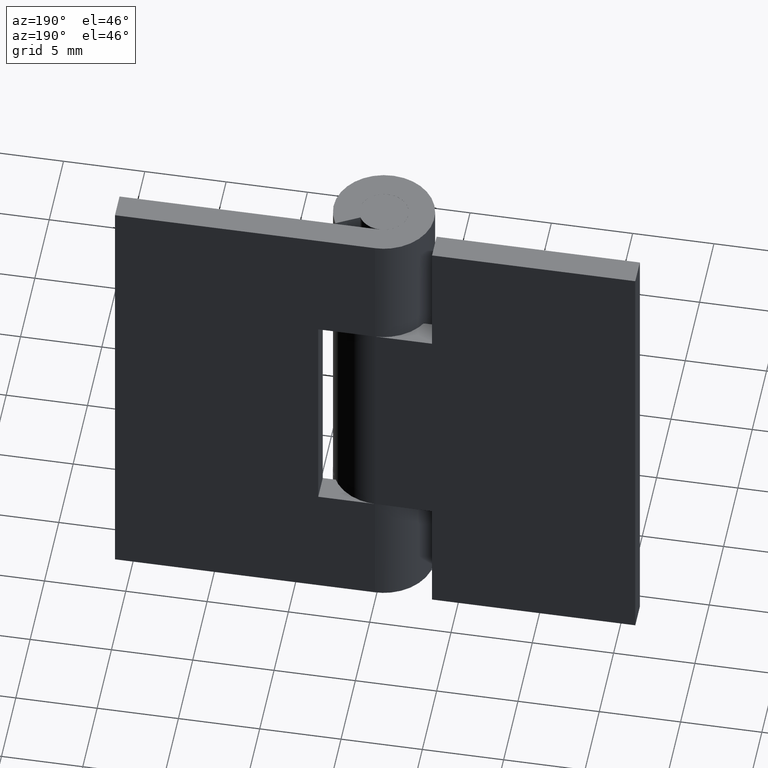
[diagram: clean part render]
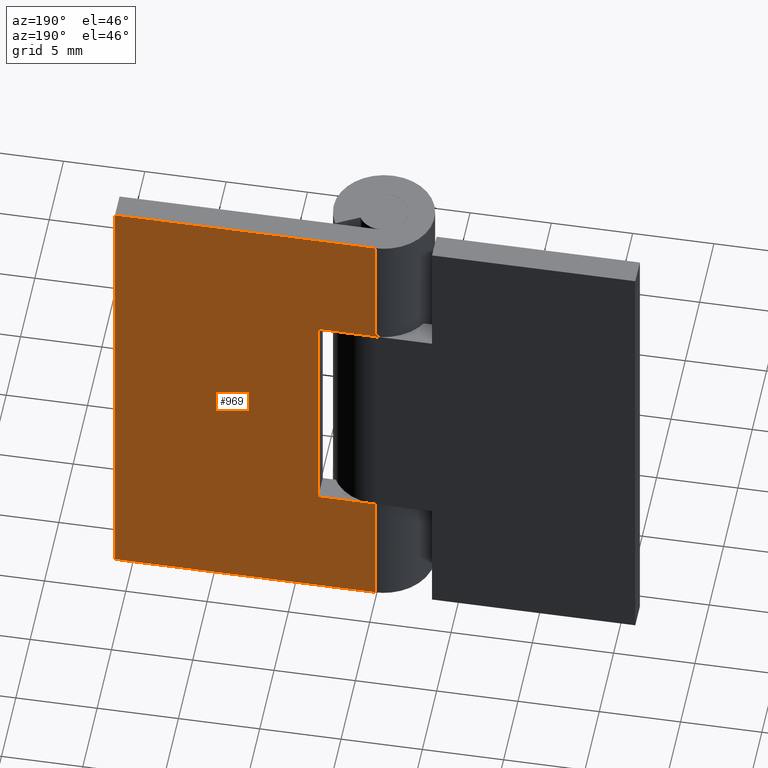
[diagram: same view with one face highlighted and labeled with its STEP entity id]
A machine part, auxiliary view. The second image highlights one B-rep face of the part: STEP entity #969.
In plain terms, the highlighted face is a freeform B-spline surface patch.
Its self-contained STEP definition (entity closure, byte-faithful):
#535=CARTESIAN_POINT('',(0.003521362805220,3.099998000000000,22.300002999999801));
#536=VERTEX_POINT('',#535);
#542=CARTESIAN_POINT('',(3.499999999999901,3.099998000000050,22.300002999999801));
#543=VERTEX_POINT('',#542);
#544=CARTESIAN_POINT('',(0.003521362805220,3.099998000000000,22.300002999999801));
#545=CARTESIAN_POINT('',(3.499999999999901,3.099998000000050,22.300002999999801));
#546=QUASI_UNIFORM_CURVE('',1,(#544,#545),.UNSPECIFIED.,.F.,.U.);
#547=EDGE_CURVE('',#536,#543,#546,.T.);
#655=CARTESIAN_POINT('',(3.499999999999901,3.099998000000050,7.699996999999900));
#656=VERTEX_POINT('',#655);
#662=CARTESIAN_POINT('',(0.003521362805220,3.099998000000000,7.699996999999900));
#663=VERTEX_POINT('',#662);
#664=CARTESIAN_POINT('',(3.499999999999901,3.099998000000050,7.699996999999900));
#665=CARTESIAN_POINT('',(0.003521362805220,3.099998000000000,7.699996999999900));
#666=QUASI_UNIFORM_CURVE('',1,(#664,#665),.UNSPECIFIED.,.F.,.U.);
#667=EDGE_CURVE('',#656,#663,#666,.T.);
#688=CARTESIAN_POINT('',(3.499999999999901,3.099998000000050,22.300002999999801));
#689=CARTESIAN_POINT('',(3.499999999999901,3.099998000000050,7.699996999999900));
#690=QUASI_UNIFORM_CURVE('',1,(#688,#689),.UNSPECIFIED.,.F.,.U.);
#691=EDGE_CURVE('',#543,#656,#690,.T.);
#704=CARTESIAN_POINT('',(0.003521362805220,3.099998000000000,0.0));
#705=VERTEX_POINT('',#704);
#725=CARTESIAN_POINT('',(16.0,3.099998000000000,0.0));
#726=VERTEX_POINT('',#725);
#727=CARTESIAN_POINT('',(0.003521362805220,3.099998000000000,0.0));
#728=CARTESIAN_POINT('',(16.0,3.099998000000000,0.0));
#729=QUASI_UNIFORM_CURVE('',1,(#727,#728),.UNSPECIFIED.,.F.,.U.);
#730=EDGE_CURVE('',#705,#726,#729,.T.);
#782=CARTESIAN_POINT('',(0.003521362805220,3.099998000000000,30.0));
#783=VERTEX_POINT('',#782);
#838=CARTESIAN_POINT('',(16.0,3.099998000000000,30.0));
#839=VERTEX_POINT('',#838);
#845=CARTESIAN_POINT('',(0.003521362805220,3.099998000000000,30.0));
#846=CARTESIAN_POINT('',(16.0,3.099998000000000,30.0));
#847=QUASI_UNIFORM_CURVE('',1,(#845,#846),.UNSPECIFIED.,.F.,.U.);
#848=EDGE_CURVE('',#783,#839,#847,.T.);
#936=CARTESIAN_POINT('',(16.0,3.099998000000000,30.0));
#937=CARTESIAN_POINT('',(16.0,3.099998000000000,0.0));
#938=QUASI_UNIFORM_CURVE('',1,(#936,#937),.UNSPECIFIED.,.F.,.U.);
#939=EDGE_CURVE('',#839,#726,#938,.T.);
#946=CARTESIAN_POINT('',(-0.795502714118380,3.099998000000000,-1.498499941854179));
#947=CARTESIAN_POINT('',(-0.795502714118380,3.099998000000000,31.498500746516889));
#948=CARTESIAN_POINT('',(16.799024505982590,3.099998000000000,-1.498499941854179));
#949=CARTESIAN_POINT('',(16.799024505982590,3.099998000000000,31.498500746516889));
#950=B_SPLINE_SURFACE_WITH_KNOTS('',1,1,((#946,#948),(#947,#949)),.UNSPECIFIED.,.F.,.F.,.U.,(2,2),(2,2),(0.0,32.997000688371067),(0.0,17.594527220100971),.UNSPECIFIED.);
#951=ORIENTED_EDGE('',*,*,#667,.F.);
#952=ORIENTED_EDGE('',*,*,#691,.F.);
#953=ORIENTED_EDGE('',*,*,#547,.F.);
#954=CARTESIAN_POINT('',(0.003521362805220,3.099998000000000,30.0));
#955=CARTESIAN_POINT('',(0.003521362805220,3.099998000000000,22.300002999999801));
#956=QUASI_UNIFORM_CURVE('',1,(#954,#955),.UNSPECIFIED.,.F.,.U.);
#957=EDGE_CURVE('',#783,#536,#956,.T.);
#958=ORIENTED_EDGE('',*,*,#957,.F.);
#959=ORIENTED_EDGE('',*,*,#848,.T.);
#960=ORIENTED_EDGE('',*,*,#939,.T.);
#961=ORIENTED_EDGE('',*,*,#730,.F.);
#962=CARTESIAN_POINT('',(0.003521362805220,3.099998000000000,7.699996999999900));
#963=CARTESIAN_POINT('',(0.003521362805220,3.099998000000000,0.0));
#964=QUASI_UNIFORM_CURVE('',1,(#962,#963),.UNSPECIFIED.,.F.,.U.);
#965=EDGE_CURVE('',#663,#705,#964,.T.);
#966=ORIENTED_EDGE('',*,*,#965,.F.);
#967=EDGE_LOOP('',(#951,#952,#953,#958,#959,#960,#961,#966));
#968=FACE_OUTER_BOUND('',#967,.T.);
#969=ADVANCED_FACE('',(#968),#950,.T.);